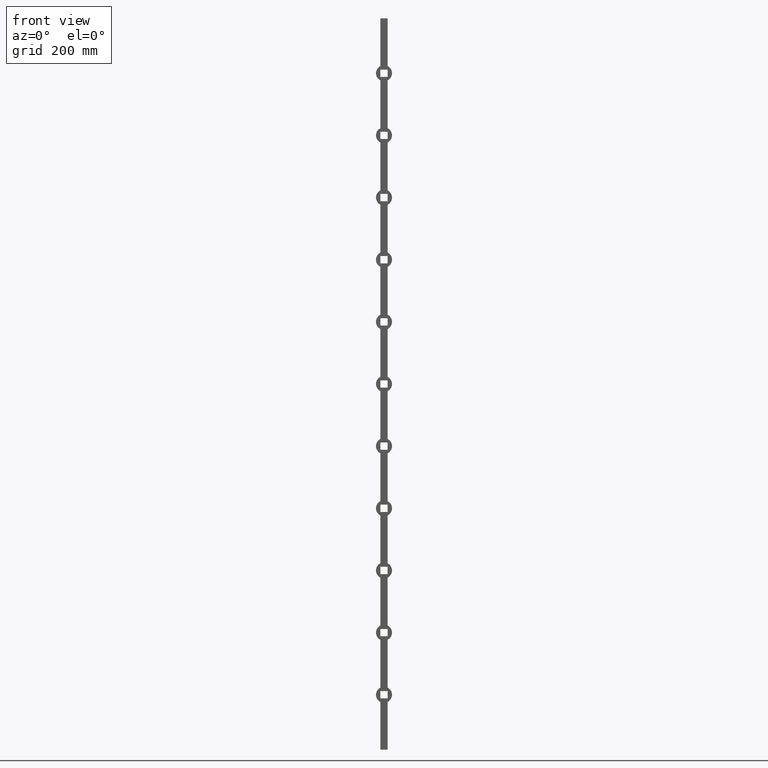
[diagram: clean part render]
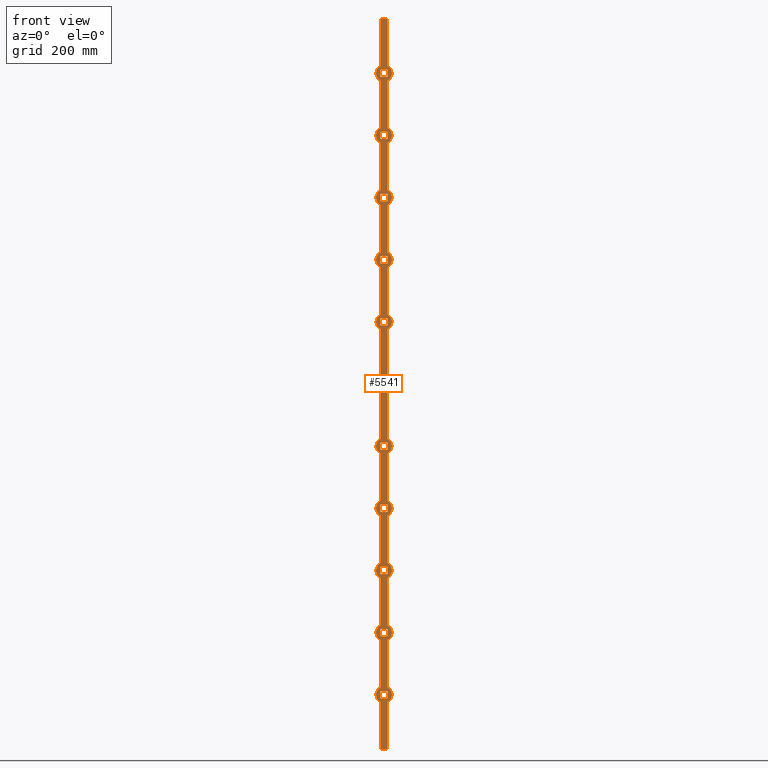
[diagram: same view with one face highlighted and labeled with its STEP entity id]
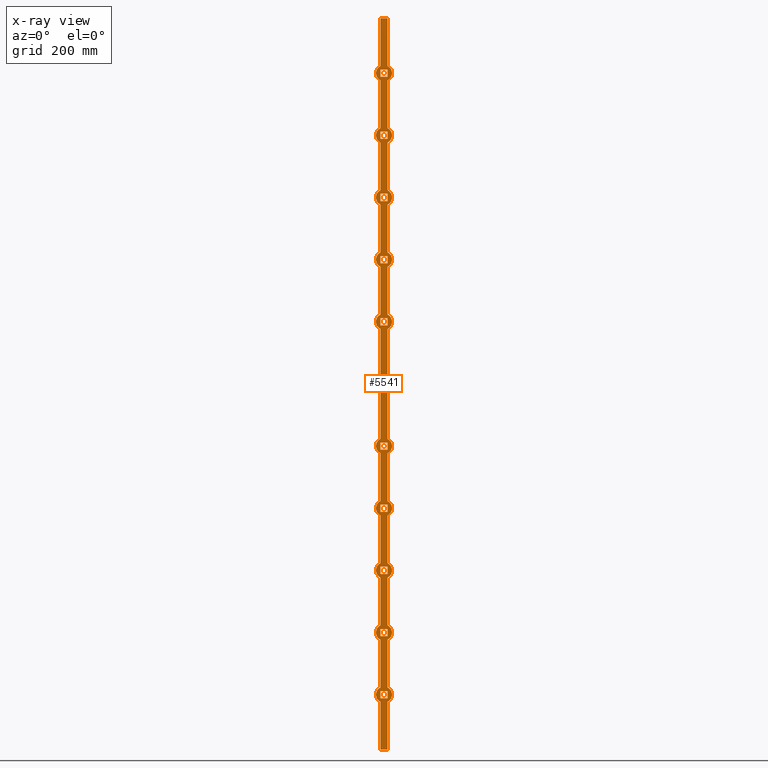
[diagram: x-ray of the same camera — body ghosted, the highlighted face saturated]
A machine part, front view. The second image highlights one B-rep face of the part: STEP entity #5541.
The next image is the same camera in x-ray: the body ghosted, the highlighted face saturated — about 0% of this face is hidden behind the body in this view.
In plain terms, the highlighted planar face has unit normal (0, 1, 0).
Its self-contained STEP definition (entity closure, byte-faithful):
#5 = VERTEX_POINT ( 'NONE', #5488 ) ;
#101 = DIRECTION ( 'NONE',  ( -8.673617379884028076E-17, -0.000000000000000000, -1.000000000000000000 ) ) ;
#110 = CARTESIAN_POINT ( 'NONE',  ( -10.00000000000000888, -10.00000000000000355, 690.0000000000000000 ) ) ;
#118 = VERTEX_POINT ( 'NONE', #7931 ) ;
#121 = LINE ( 'NONE', #10227, #9875 ) ;
#126 = VERTEX_POINT ( 'NONE', #1777 ) ;
#150 = LINE ( 'NONE', #3317, #4293 ) ;
#168 = VERTEX_POINT ( 'NONE', #7575 ) ;
#201 = CARTESIAN_POINT ( 'NONE',  ( -9.999999999999998224, -10.00000000000000000, 19.59591794226531647 ) ) ;
#216 = LINE ( 'NONE', #1017, #2536 ) ;
#217 = CARTESIAN_POINT ( 'NONE',  ( 0.000000000000000000, -10.00000000000000000, -850.0000000000002274 ) ) ;
#246 = CARTESIAN_POINT ( 'NONE',  ( -9.999999999999998224, -10.00000000000000178, 1000.000000000000000 ) ) ;
#258 = ORIENTED_EDGE ( 'NONE', *, *, #12549, .T. ) ;
#261 = AXIS2_PLACEMENT_3D ( 'NONE', #475, #5370, #6409 ) ;
#270 = DIRECTION ( 'NONE',  ( 1.000000000000000000, 0.000000000000000000, 0.000000000000000000 ) ) ;
#272 = AXIS2_PLACEMENT_3D ( 'NONE', #3239, #10012, #5161 ) ;
#280 = ORIENTED_EDGE ( 'NONE', *, *, #8237, .T. ) ;
#282 = ORIENTED_EDGE ( 'NONE', *, *, #4991, .F. ) ;
#290 = EDGE_CURVE ( 'NONE', #4674, #1785, #3842, .T. ) ;
#294 = ORIENTED_EDGE ( 'NONE', *, *, #9696, .F. ) ;
#301 = DIRECTION ( 'NONE',  ( 0.000000000000000000, 0.000000000000000000, 1.000000000000000000 ) ) ;
#313 = EDGE_CURVE ( 'NONE', #4610, #2279, #3104, .T. ) ;
#325 = LINE ( 'NONE', #9136, #6896 ) ;
#346 = VECTOR ( 'NONE', #1268, 1000.000000000000000 ) ;
#349 = CARTESIAN_POINT ( 'NONE',  ( -9.999999999999984013, -10.00000000000000000, -320.4040820577347404 ) ) ;
#366 = VERTEX_POINT ( 'NONE', #6201 ) ;
#383 = CARTESIAN_POINT ( 'NONE',  ( -10.00000000000001066, -10.00000000000000355, 499.9999999999999432 ) ) ;
#391 = VECTOR ( 'NONE', #7766, 1000.000000000000000 ) ;
#439 = CARTESIAN_POINT ( 'NONE',  ( 10.00000000000000178, -10.00000000000000355, 359.5959179422654302 ) ) ;
#464 = LINE ( 'NONE', #5797, #3704 ) ;
#475 = CARTESIAN_POINT ( 'NONE',  ( 0.000000000000000000, -10.00000000000000000, -680.0000000000000000 ) ) ;
#509 = LINE ( 'NONE', #8460, #3898 ) ;
#512 = CARTESIAN_POINT ( 'NONE',  ( 10.00000000000000711, -10.00000000000000355, 329.9999999999999432 ) ) ;
#536 = VECTOR ( 'NONE', #2397, 1000.000000000000000 ) ;
#544 = EDGE_CURVE ( 'NONE', #4027, #8877, #907, .T. ) ;
#591 = CARTESIAN_POINT ( 'NONE',  ( -10.00000000000000888, -10.00000000000000355, -670.0000000000000000 ) ) ;
#601 = DIRECTION ( 'NONE',  ( -1.000000000000000000, -0.000000000000000000, -0.000000000000000000 ) ) ;
#644 = VERTEX_POINT ( 'NONE', #5026 ) ;
#647 = CARTESIAN_POINT ( 'NONE',  ( -10.00000000000001066, -10.00000000000000355, 669.9999999999998863 ) ) ;
#664 = EDGE_CURVE ( 'NONE', #11410, #12197, #1694, .T. ) ;
#676 = EDGE_CURVE ( 'NONE', #8651, #10917, #757, .T. ) ;
#715 = VERTEX_POINT ( 'NONE', #11104 ) ;
#716 = EDGE_CURVE ( 'NONE', #9146, #3802, #9149, .T. ) ;
#720 = VECTOR ( 'NONE', #12362, 1000.000000000000000 ) ;
#737 = AXIS2_PLACEMENT_3D ( 'NONE', #6223, #11020, #9154 ) ;
#741 = CARTESIAN_POINT ( 'NONE',  ( -10.00000000000000888, -10.00000000000000355, -330.0000000000001705 ) ) ;
#757 = LINE ( 'NONE', #2255, #9583 ) ;
#786 = CARTESIAN_POINT ( 'NONE',  ( 10.00000000000000888, -10.00000000000000355, -330.0000000000001705 ) ) ;
#787 = ORIENTED_EDGE ( 'NONE', *, *, #5426, .T. ) ;
#822 = LINE ( 'NONE', #9133, #2392 ) ;
#825 = CARTESIAN_POINT ( 'NONE',  ( -9.999999999999998224, -10.00000000000000355, -359.5959179422656575 ) ) ;
#831 = DIRECTION ( 'NONE',  ( 0.000000000000000000, 1.000000000000000000, 0.000000000000000000 ) ) ;
#841 = CARTESIAN_POINT ( 'NONE',  ( -9.999999999999998224, -10.00000000000000178, 1000.000000000000000 ) ) ;
#845 = CARTESIAN_POINT ( 'NONE',  ( -10.00000000000000888, -10.00000000000000355, -840.0000000000002274 ) ) ;
#855 = CARTESIAN_POINT ( 'NONE',  ( 10.00000000000000711, -10.00000000000000355, -180.0000000000000568 ) ) ;
#879 = ORIENTED_EDGE ( 'NONE', *, *, #1851, .F. ) ;
#883 = CARTESIAN_POINT ( 'NONE',  ( -10.00000000000000888, -10.00000000000000355, -160.0000000000000284 ) ) ;
#887 = EDGE_CURVE ( 'NONE', #11260, #11503, #11861, .T. ) ;
#907 = CIRCLE ( 'NONE', #2335, 22.00000000000002132 ) ;
#912 = LINE ( 'NONE', #1453, #2027 ) ;
#920 = ORIENTED_EDGE ( 'NONE', *, *, #3046, .F. ) ;
#931 = CARTESIAN_POINT ( 'NONE',  ( -9.999999999999984013, -10.00000000000000000, -660.4040820577346267 ) ) ;
#936 = ORIENTED_EDGE ( 'NONE', *, *, #2324, .T. ) ;
#939 = DIRECTION ( 'NONE',  ( 1.000000000000000000, 0.000000000000000000, 0.000000000000000000 ) ) ;
#955 = LINE ( 'NONE', #11697, #1738 ) ;
#1002 = CARTESIAN_POINT ( 'NONE',  ( -10.00000000000001066, -10.00000000000000178, 329.9999999999999432 ) ) ;
#1017 = CARTESIAN_POINT ( 'NONE',  ( 10.00000000000000711, -10.00000000000000355, 499.9999999999999432 ) ) ;
#1018 = CARTESIAN_POINT ( 'NONE',  ( -9.999999999999984013, -10.00000000000000000, 359.5959179422654302 ) ) ;
#1042 = DIRECTION ( 'NONE',  ( 0.000000000000000000, 1.000000000000000000, 0.000000000000000000 ) ) ;
#1058 = DIRECTION ( 'NONE',  ( 1.000000000000000000, 0.000000000000000000, 0.000000000000000000 ) ) ;
#1064 = VERTEX_POINT ( 'NONE', #6754 ) ;
#1082 = CARTESIAN_POINT ( 'NONE',  ( -10.00000000000000888, -10.00000000000000355, -840.0000000000002274 ) ) ;
#1090 = CARTESIAN_POINT ( 'NONE',  ( 10.00000000000000711, -10.00000000000000355, -520.0000000000001137 ) ) ;
#1101 = VECTOR ( 'NONE', #8656, 1000.000000000000000 ) ;
#1139 = LINE ( 'NONE', #10282, #9202 ) ;
#1146 = FACE_BOUND ( 'NONE', #6575, .T. ) ;
#1151 = EDGE_CURVE ( 'NONE', #4027, #3370, #11109, .T. ) ;
#1174 = DIRECTION ( 'NONE',  ( 8.673617379884028076E-17, 0.000000000000000000, 1.000000000000000000 ) ) ;
#1183 = CIRCLE ( 'NONE', #10207, 22.00000000000002132 ) ;
#1186 = CARTESIAN_POINT ( 'NONE',  ( 10.00000000000000533, -10.00000000000000000, 150.4040820577345130 ) ) ;
#1203 = ORIENTED_EDGE ( 'NONE', *, *, #1713, .T. ) ;
#1257 = LINE ( 'NONE', #5713, #1101 ) ;
#1268 = DIRECTION ( 'NONE',  ( -1.000000000000000000, -0.000000000000000000, -0.000000000000000000 ) ) ;
#1286 = DIRECTION ( 'NONE',  ( -1.000000000000000000, -0.000000000000000000, -0.000000000000000000 ) ) ;
#1294 = LINE ( 'NONE', #647, #11326 ) ;
#1323 = DIRECTION ( 'NONE',  ( 0.000000000000000000, 1.000000000000000000, 0.000000000000000000 ) ) ;
#1336 = EDGE_CURVE ( 'NONE', #5920, #9279, #12599, .T. ) ;
#1337 = CARTESIAN_POINT ( 'NONE',  ( 10.00000000000000888, -10.00000000000000355, -500.0000000000001137 ) ) ;
#1340 = DIRECTION ( 'NONE',  ( -0.000000000000000000, -0.000000000000000000, -1.000000000000000000 ) ) ;
#1350 = LINE ( 'NONE', #855, #720 ) ;
#1351 = EDGE_CURVE ( 'NONE', #7576, #9570, #150, .T. ) ;
#1360 = CIRCLE ( 'NONE', #2660, 22.00000000000002132 ) ;
#1384 = VECTOR ( 'NONE', #11019, 1000.000000000000000 ) ;
#1386 = VECTOR ( 'NONE', #4998, 1000.000000000000000 ) ;
#1408 = CARTESIAN_POINT ( 'NONE',  ( -10.00000000000001066, -10.00000000000000355, -180.0000000000000568 ) ) ;
#1410 = EDGE_CURVE ( 'NONE', #8058, #5920, #5327, .T. ) ;
#1412 = AXIS2_PLACEMENT_3D ( 'NONE', #1882, #831, #4716 ) ;
#1431 = EDGE_LOOP ( 'NONE', ( #9948, #4682, #7808, #12561 ) ) ;
#1436 = EDGE_CURVE ( 'NONE', #6146, #7035, #8220, .T. ) ;
#1447 = ORIENTED_EDGE ( 'NONE', *, *, #3707, .F. ) ;
#1448 = LINE ( 'NONE', #11044, #2096 ) ;
#1452 = DIRECTION ( 'NONE',  ( -0.000000000000000000, -0.000000000000000000, -1.000000000000000000 ) ) ;
#1453 = CARTESIAN_POINT ( 'NONE',  ( -10.00000000000001066, -10.00000000000000355, -10.00000000000012079 ) ) ;
#1458 = LINE ( 'NONE', #3268, #9067 ) ;
#1470 = VECTOR ( 'NONE', #4723, 1000.000000000000000 ) ;
#1514 = LINE ( 'NONE', #2065, #11550 ) ;
#1515 = CARTESIAN_POINT ( 'NONE',  ( -9.999999999999998224, -10.00000000000000355, 150.4040820577345130 ) ) ;
#1523 = VERTEX_POINT ( 'NONE', #2950 ) ;
#1531 = LINE ( 'NONE', #10055, #11560 ) ;
#1552 = DIRECTION ( 'NONE',  ( -8.673617379884028076E-17, -0.000000000000000000, -1.000000000000000000 ) ) ;
#1555 = EDGE_CURVE ( 'NONE', #11877, #4475, #10193, .T. ) ;
#1562 = VERTEX_POINT ( 'NONE', #11835 ) ;
#1594 = FACE_BOUND ( 'NONE', #10344, .T. ) ;
#1634 = ORIENTED_EDGE ( 'NONE', *, *, #11200, .T. ) ;
#1657 = EDGE_CURVE ( 'NONE', #10653, #3370, #9152, .T. ) ;
#1669 = AXIS2_PLACEMENT_3D ( 'NONE', #9502, #6535, #12243 ) ;
#1684 = CARTESIAN_POINT ( 'NONE',  ( -9.999999999999998224, -10.00000000000000355, -189.5959179422654586 ) ) ;
#1694 = CIRCLE ( 'NONE', #8231, 22.00000000000002132 ) ;
#1713 = EDGE_CURVE ( 'NONE', #11723, #4989, #1531, .T. ) ;
#1736 = EDGE_CURVE ( 'NONE', #10285, #11207, #912, .T. ) ;
#1738 = VECTOR ( 'NONE', #6881, 1000.000000000000000 ) ;
#1760 = CARTESIAN_POINT ( 'NONE',  ( 0.000000000000000000, -10.00000000000000000, -170.0000000000000284 ) ) ;
#1774 = VECTOR ( 'NONE', #10578, 1000.000000000000000 ) ;
#1777 = CARTESIAN_POINT ( 'NONE',  ( -9.999999999999998224, -10.00000000000000355, 830.4040820577345130 ) ) ;
#1778 = CARTESIAN_POINT ( 'NONE',  ( 10.00000000000000888, -10.00000000000000355, 690.0000000000000000 ) ) ;
#1779 = ORIENTED_EDGE ( 'NONE', *, *, #6457, .T. ) ;
#1785 = VERTEX_POINT ( 'NONE', #5389 ) ;
#1824 = VECTOR ( 'NONE', #8163, 1000.000000000000000 ) ;
#1827 = AXIS2_PLACEMENT_3D ( 'NONE', #2723, #12396, #4613 ) ;
#1832 = VERTEX_POINT ( 'NONE', #10256 ) ;
#1835 = DIRECTION ( 'NONE',  ( -0.000000000000000000, -0.000000000000000000, -1.000000000000000000 ) ) ;
#1851 = EDGE_CURVE ( 'NONE', #6179, #4989, #7160, .T. ) ;
#1854 = DIRECTION ( 'NONE',  ( 8.673617379884028076E-17, 0.000000000000000000, 1.000000000000000000 ) ) ;
#1856 = ORIENTED_EDGE ( 'NONE', *, *, #2837, .T. ) ;
#1868 = VERTEX_POINT ( 'NONE', #439 ) ;
#1882 = CARTESIAN_POINT ( 'NONE',  ( 0.000000000000000000, -10.00000000000000000, 169.9999999999999432 ) ) ;
#1931 = LINE ( 'NONE', #2315, #9654 ) ;
#1941 = VERTEX_POINT ( 'NONE', #11331 ) ;
#1948 = ORIENTED_EDGE ( 'NONE', *, *, #6240, .T. ) ;
#1974 = CARTESIAN_POINT ( 'NONE',  ( -10.00000000000001066, -10.00000000000000355, -690.0000000000001137 ) ) ;
#1978 = CARTESIAN_POINT ( 'NONE',  ( -10.00000000000001066, -10.00000000000000355, -690.0000000000001137 ) ) ;
#2027 = VECTOR ( 'NONE', #3427, 1000.000000000000000 ) ;
#2053 = ORIENTED_EDGE ( 'NONE', *, *, #6404, .T. ) ;
#2065 = CARTESIAN_POINT ( 'NONE',  ( -10.00000000000001066, -10.00000000000000355, -520.0000000000001137 ) ) ;
#2093 = CARTESIAN_POINT ( 'NONE',  ( -10.00000000000001066, -10.00000000000000178, -350.0000000000001137 ) ) ;
#2096 = VECTOR ( 'NONE', #3172, 1000.000000000000000 ) ;
#2109 = LINE ( 'NONE', #845, #10885 ) ;
#2190 = CARTESIAN_POINT ( 'NONE',  ( 0.000000000000000000, -10.00000000000000000, 679.9999999999998863 ) ) ;
#2191 = EDGE_CURVE ( 'NONE', #10469, #9020, #4415, .T. ) ;
#2200 = ORIENTED_EDGE ( 'NONE', *, *, #2589, .T. ) ;
#2208 = DIRECTION ( 'NONE',  ( -0.000000000000000000, -0.000000000000000000, -1.000000000000000000 ) ) ;
#2222 = DIRECTION ( 'NONE',  ( 0.000000000000000000, 1.000000000000000000, 0.000000000000000000 ) ) ;
#2239 = VERTEX_POINT ( 'NONE', #6103 ) ;
#2255 = CARTESIAN_POINT ( 'NONE',  ( 10.00000000000000178, -10.00000000000000178, 1000.000000000000000 ) ) ;
#2277 = DIRECTION ( 'NONE',  ( 8.673617379884028076E-17, 0.000000000000000000, 1.000000000000000000 ) ) ;
#2279 = VERTEX_POINT ( 'NONE', #6322 ) ;
#2286 = ORIENTED_EDGE ( 'NONE', *, *, #1410, .T. ) ;
#2315 = CARTESIAN_POINT ( 'NONE',  ( -10.00000000000000888, -10.00000000000000355, -500.0000000000001137 ) ) ;
#2324 = EDGE_CURVE ( 'NONE', #366, #168, #12280, .T. ) ;
#2335 = AXIS2_PLACEMENT_3D ( 'NONE', #6777, #11653, #12608 ) ;
#2346 = CARTESIAN_POINT ( 'NONE',  ( -10.00000000000001066, -10.00000000000000355, 840.0000000000000000 ) ) ;
#2347 = VERTEX_POINT ( 'NONE', #1684 ) ;
#2352 = CARTESIAN_POINT ( 'NONE',  ( -9.999999999999998224, -10.00000000000000178, 1000.000000000000000 ) ) ;
#2353 = AXIS2_PLACEMENT_3D ( 'NONE', #3494, #11220, #11181 ) ;
#2371 = VERTEX_POINT ( 'NONE', #591 ) ;
#2379 = CARTESIAN_POINT ( 'NONE',  ( -9.999999999999998224, -10.00000000000000355, -529.5959179422656007 ) ) ;
#2384 = LINE ( 'NONE', #2483, #3736 ) ;
#2392 = VECTOR ( 'NONE', #2277, 1000.000000000000000 ) ;
#2397 = DIRECTION ( 'NONE',  ( -0.000000000000000000, -0.000000000000000000, -1.000000000000000000 ) ) ;
#2400 = VERTEX_POINT ( 'NONE', #5777 ) ;
#2407 = LINE ( 'NONE', #9221, #4364 ) ;
#2436 = VECTOR ( 'NONE', #7767, 1000.000000000000000 ) ;
#2439 = DIRECTION ( 'NONE',  ( 0.000000000000000000, 1.000000000000000000, 0.000000000000000000 ) ) ;
#2451 = EDGE_CURVE ( 'NONE', #9570, #9146, #4128, .T. ) ;
#2460 = VERTEX_POINT ( 'NONE', #931 ) ;
#2483 = CARTESIAN_POINT ( 'NONE',  ( -10.00000000000000888, -10.00000000000000355, 9.999999999999896971 ) ) ;
#2511 = LINE ( 'NONE', #8479, #7965 ) ;
#2527 = LINE ( 'NONE', #8468, #6314 ) ;
#2532 = CARTESIAN_POINT ( 'NONE',  ( 10.00000000000000178, -10.00000000000000355, -320.4040820577347404 ) ) ;
#2536 = VECTOR ( 'NONE', #3805, 1000.000000000000000 ) ;
#2558 = LINE ( 'NONE', #3207, #536 ) ;
#2583 = LINE ( 'NONE', #11658, #5282 ) ;
#2589 = EDGE_CURVE ( 'NONE', #12068, #9753, #5446, .T. ) ;
#2604 = CARTESIAN_POINT ( 'NONE',  ( 10.00000000000000178, -10.00000000000000178, 1000.000000000000000 ) ) ;
#2609 = ORIENTED_EDGE ( 'NONE', *, *, #7473, .T. ) ;
#2640 = EDGE_CURVE ( 'NONE', #1562, #11264, #1360, .T. ) ;
#2643 = CIRCLE ( 'NONE', #261, 22.00000000000002132 ) ;
#2660 = AXIS2_PLACEMENT_3D ( 'NONE', #4689, #12349, #3811 ) ;
#2662 = CARTESIAN_POINT ( 'NONE',  ( -10.00000000000001066, -10.00000000000000355, 669.9999999999998863 ) ) ;
#2666 = DIRECTION ( 'NONE',  ( -1.000000000000000000, -0.000000000000000000, -0.000000000000000000 ) ) ;
#2712 = CARTESIAN_POINT ( 'NONE',  ( -10.00000000000000888, -10.00000000000000355, 350.0000000000000000 ) ) ;
#2723 = CARTESIAN_POINT ( 'NONE',  ( 0.000000000000000000, -10.00000000000000000, -1.110223024625156540E-13 ) ) ;
#2758 = EDGE_CURVE ( 'NONE', #8678, #1064, #10611, .T. ) ;
#2779 = CARTESIAN_POINT ( 'NONE',  ( -10.00000000000001066, -10.00000000000000178, -520.0000000000000000 ) ) ;
#2782 = VERTEX_POINT ( 'NONE', #11602 ) ;
#2837 = EDGE_CURVE ( 'NONE', #4596, #10469, #3215, .T. ) ;
#2842 = DIRECTION ( 'NONE',  ( -0.000000000000000000, -0.000000000000000000, -1.000000000000000000 ) ) ;
#2844 = VECTOR ( 'NONE', #5133, 1000.000000000000000 ) ;
#2892 = EDGE_CURVE ( 'NONE', #1941, #6146, #7281, .T. ) ;
#2922 = VERTEX_POINT ( 'NONE', #8199 ) ;
#2936 = VERTEX_POINT ( 'NONE', #6258 ) ;
#2938 = VECTOR ( 'NONE', #9934, 1000.000000000000000 ) ;
#2950 = CARTESIAN_POINT ( 'NONE',  ( -10.00000000000001066, -10.00000000000000178, 840.0000000000000000 ) ) ;
#2958 = DIRECTION ( 'NONE',  ( -0.000000000000000000, -0.000000000000000000, -1.000000000000000000 ) ) ;
#2960 = DIRECTION ( 'NONE',  ( 0.000000000000000000, 1.000000000000000000, 0.000000000000000000 ) ) ;
#2963 = ORIENTED_EDGE ( 'NONE', *, *, #8171, .T. ) ;
#2980 = LINE ( 'NONE', #1978, #346 ) ;
#3026 = ORIENTED_EDGE ( 'NONE', *, *, #11312, .F. ) ;
#3046 = EDGE_CURVE ( 'NONE', #118, #5032, #121, .T. ) ;
#3053 = ORIENTED_EDGE ( 'NONE', *, *, #4721, .T. ) ;
#3062 = ORIENTED_EDGE ( 'NONE', *, *, #7162, .T. ) ;
#3082 = ORIENTED_EDGE ( 'NONE', *, *, #9843, .T. ) ;
#3104 = LINE ( 'NONE', #7164, #9294 ) ;
#3117 = ORIENTED_EDGE ( 'NONE', *, *, #313, .T. ) ;
#3166 = CARTESIAN_POINT ( 'NONE',  ( -10.00000000000001066, -10.00000000000000178, -10.00000000000023093 ) ) ;
#3172 = DIRECTION ( 'NONE',  ( 1.000000000000000000, 0.000000000000000000, 0.000000000000000000 ) ) ;
#3207 = CARTESIAN_POINT ( 'NONE',  ( 10.00000000000000178, -10.00000000000000178, 1000.000000000000000 ) ) ;
#3215 = LINE ( 'NONE', #7032, #6687 ) ;
#3227 = CARTESIAN_POINT ( 'NONE',  ( 0.000000000000000000, -10.00000000000000000, -850.0000000000002274 ) ) ;
#3239 = CARTESIAN_POINT ( 'NONE',  ( 0.000000000000000000, -10.00000000000000000, 339.9999999999999432 ) ) ;
#3268 = CARTESIAN_POINT ( 'NONE',  ( 10.00000000000000178, -10.00000000000000178, 1000.000000000000000 ) ) ;
#3282 = CARTESIAN_POINT ( 'NONE',  ( 0.000000000000000000, -10.00000000000000000, 510.0000000000000000 ) ) ;
#3284 = EDGE_CURVE ( 'NONE', #11645, #2371, #12419, .T. ) ;
#3294 = LINE ( 'NONE', #12525, #9484 ) ;
#3317 = CARTESIAN_POINT ( 'NONE',  ( 10.00000000000000178, -10.00000000000000178, 1000.000000000000000 ) ) ;
#3333 = CARTESIAN_POINT ( 'NONE',  ( -10.00000000000000888, -10.00000000000000355, 520.0000000000000000 ) ) ;
#3370 = VERTEX_POINT ( 'NONE', #7939 ) ;
#3381 = DIRECTION ( 'NONE',  ( -1.000000000000000000, -0.000000000000000000, -0.000000000000000000 ) ) ;
#3391 = EDGE_CURVE ( 'NONE', #10631, #8651, #11089, .T. ) ;
#3397 = DIRECTION ( 'NONE',  ( 8.673617379884028076E-17, 0.000000000000000000, 1.000000000000000000 ) ) ;
#3419 = DIRECTION ( 'NONE',  ( 1.000000000000000000, 0.000000000000000000, 0.000000000000000000 ) ) ;
#3427 = DIRECTION ( 'NONE',  ( 8.673617379884028076E-17, 0.000000000000000000, 1.000000000000000000 ) ) ;
#3465 = VECTOR ( 'NONE', #5130, 1000.000000000000000 ) ;
#3478 = CARTESIAN_POINT ( 'NONE',  ( -10.00000000000001066, -10.00000000000000178, 159.9999999999999147 ) ) ;
#3491 = EDGE_LOOP ( 'NONE', ( #10901, #1856, #8787, #10072 ) ) ;
#3494 = CARTESIAN_POINT ( 'NONE',  ( 0.000000000000000000, -10.00000000000000000, 169.9999999999999432 ) ) ;
#3536 = LINE ( 'NONE', #3764, #9300 ) ;
#3539 = CARTESIAN_POINT ( 'NONE',  ( 10.00000000000000178, -10.00000000000000355, -150.4040820577346267 ) ) ;
#3597 = CARTESIAN_POINT ( 'NONE',  ( 10.00000000000000178, -10.00000000000000355, 869.5959179422653733 ) ) ;
#3602 = LINE ( 'NONE', #5946, #9815 ) ;
#3630 = EDGE_CURVE ( 'NONE', #12328, #8058, #1350, .T. ) ;
#3659 = VERTEX_POINT ( 'NONE', #1082 ) ;
#3670 = CARTESIAN_POINT ( 'NONE',  ( -9.999999999999998224, -10.00000000000000355, -699.5959179422654870 ) ) ;
#3674 = CARTESIAN_POINT ( 'NONE',  ( 0.000000000000000000, -10.00000000000000000, -680.0000000000000000 ) ) ;
#3704 = VECTOR ( 'NONE', #4744, 1000.000000000000000 ) ;
#3707 = EDGE_CURVE ( 'NONE', #4670, #644, #2583, .T. ) ;
#3716 = VECTOR ( 'NONE', #11599, 1000.000000000000000 ) ;
#3725 = EDGE_LOOP ( 'NONE', ( #3053, #936, #5769, #8346 ) ) ;
#3726 = DIRECTION ( 'NONE',  ( 0.000000000000000000, 0.000000000000000000, 1.000000000000000000 ) ) ;
#3736 = VECTOR ( 'NONE', #8489, 1000.000000000000000 ) ;
#3748 = FACE_BOUND ( 'NONE', #3828, .T. ) ;
#3764 = CARTESIAN_POINT ( 'NONE',  ( -9.999999999999998224, -10.00000000000000178, 1000.000000000000000 ) ) ;
#3771 = LINE ( 'NONE', #11972, #8013 ) ;
#3779 = CARTESIAN_POINT ( 'NONE',  ( 10.00000000000000178, -10.00000000000000000, -19.59591794226553674 ) ) ;
#3791 = AXIS2_PLACEMENT_3D ( 'NONE', #10096, #5164, #301 ) ;
#3802 = VERTEX_POINT ( 'NONE', #3539 ) ;
#3805 = DIRECTION ( 'NONE',  ( -8.673617379884028076E-17, -0.000000000000000000, -1.000000000000000000 ) ) ;
#3811 = DIRECTION ( 'NONE',  ( 0.000000000000000000, 0.000000000000000000, 1.000000000000000000 ) ) ;
#3828 = EDGE_LOOP ( 'NONE', ( #7595, #11399, #2286, #5766 ) ) ;
#3832 = ORIENTED_EDGE ( 'NONE', *, *, #8596, .T. ) ;
#3842 = LINE ( 'NONE', #383, #2938 ) ;
#3877 = VERTEX_POINT ( 'NONE', #8668 ) ;
#3890 = AXIS2_PLACEMENT_3D ( 'NONE', #8009, #11782, #8046 ) ;
#3898 = VECTOR ( 'NONE', #2666, 1000.000000000000000 ) ;
#3905 = DIRECTION ( 'NONE',  ( 0.000000000000000000, 0.000000000000000000, 1.000000000000000000 ) ) ;
#3906 = CARTESIAN_POINT ( 'NONE',  ( -10.00000000000000888, -10.00000000000000355, -500.0000000000001137 ) ) ;
#4002 = EDGE_CURVE ( 'NONE', #9828, #4287, #8179, .T. ) ;
#4027 = VERTEX_POINT ( 'NONE', #825 ) ;
#4057 = FACE_BOUND ( 'NONE', #3491, .T. ) ;
#4091 = DIRECTION ( 'NONE',  ( 0.000000000000000000, 0.000000000000000000, 1.000000000000000000 ) ) ;
#4094 = EDGE_CURVE ( 'NONE', #12121, #11877, #1514, .T. ) ;
#4098 = CARTESIAN_POINT ( 'NONE',  ( -9.999999999999998224, -10.00000000000000178, 1000.000000000000000 ) ) ;
#4107 = CARTESIAN_POINT ( 'NONE',  ( -9.999999999999998224, -10.00000000000000355, 320.4040820577345130 ) ) ;
#4112 = ORIENTED_EDGE ( 'NONE', *, *, #9807, .T. ) ;
#4128 = CIRCLE ( 'NONE', #1827, 22.00000000000000355 ) ;
#4155 = VECTOR ( 'NONE', #8593, 1000.000000000000000 ) ;
#4181 = VECTOR ( 'NONE', #3397, 1000.000000000000000 ) ;
#4191 = CIRCLE ( 'NONE', #272, 22.00000000000002132 ) ;
#4207 = EDGE_CURVE ( 'NONE', #2782, #5621, #2558, .T. ) ;
#4225 = LINE ( 'NONE', #11127, #3465 ) ;
#4234 = CARTESIAN_POINT ( 'NONE',  ( 0.000000000000000000, -10.00000000000000000, 850.0000000000000000 ) ) ;
#4245 = EDGE_CURVE ( 'NONE', #5, #9835, #4225, .T. ) ;
#4275 = DIRECTION ( 'NONE',  ( 0.000000000000000000, 1.000000000000000000, 0.000000000000000000 ) ) ;
#4287 = VERTEX_POINT ( 'NONE', #12155 ) ;
#4293 = VECTOR ( 'NONE', #1452, 1000.000000000000000 ) ;
#4364 = VECTOR ( 'NONE', #3419, 1000.000000000000000 ) ;
#4371 = CARTESIAN_POINT ( 'NONE',  ( 10.00000000000000711, -10.00000000000000355, -690.0000000000001137 ) ) ;
#4391 = DIRECTION ( 'NONE',  ( 8.673617379884028076E-17, 0.000000000000000000, 1.000000000000000000 ) ) ;
#4415 = LINE ( 'NONE', #11066, #10796 ) ;
#4467 = CARTESIAN_POINT ( 'NONE',  ( -10.00000000000001066, -10.00000000000000355, 840.0000000000000000 ) ) ;
#4475 = VERTEX_POINT ( 'NONE', #3906 ) ;
#4510 = DIRECTION ( 'NONE',  ( 0.000000000000000000, 1.000000000000000000, 0.000000000000000000 ) ) ;
#4522 = CIRCLE ( 'NONE', #3890, 22.00000000000002132 ) ;
#4579 = PLANE ( 'NONE',  #1669 ) ;
#4596 = VERTEX_POINT ( 'NONE', #8045 ) ;
#4610 = VERTEX_POINT ( 'NONE', #2093 ) ;
#4611 = CIRCLE ( 'NONE', #1412, 21.99999999999999289 ) ;
#4613 = DIRECTION ( 'NONE',  ( 0.000000000000000000, 0.000000000000000000, 1.000000000000000000 ) ) ;
#4650 = LINE ( 'NONE', #10064, #2844 ) ;
#4670 = VERTEX_POINT ( 'NONE', #4733 ) ;
#4673 = VECTOR ( 'NONE', #6543, 1000.000000000000000 ) ;
#4674 = VERTEX_POINT ( 'NONE', #11524 ) ;
#4675 = LINE ( 'NONE', #11434, #1470 ) ;
#4682 = ORIENTED_EDGE ( 'NONE', *, *, #5503, .T. ) ;
#4689 = CARTESIAN_POINT ( 'NONE',  ( 0.000000000000000000, -10.00000000000000000, 510.0000000000000000 ) ) ;
#4705 = VECTOR ( 'NONE', #10794, 1000.000000000000000 ) ;
#4712 = ORIENTED_EDGE ( 'NONE', *, *, #7200, .F. ) ;
#4716 = DIRECTION ( 'NONE',  ( 0.000000000000000000, 0.000000000000000000, 1.000000000000000000 ) ) ;
#4721 = EDGE_CURVE ( 'NONE', #8247, #366, #9826, .T. ) ;
#4723 = DIRECTION ( 'NONE',  ( -0.000000000000000000, -0.000000000000000000, -1.000000000000000000 ) ) ;
#4733 = CARTESIAN_POINT ( 'NONE',  ( 9.999999999999984013, -10.00000000000000000, -699.5959179422654870 ) ) ;
#4744 = DIRECTION ( 'NONE',  ( 1.000000000000000000, 0.000000000000000000, 0.000000000000000000 ) ) ;
#4745 = ORIENTED_EDGE ( 'NONE', *, *, #676, .F. ) ;
#4746 = EDGE_CURVE ( 'NONE', #3659, #8928, #2109, .T. ) ;
#4773 = CARTESIAN_POINT ( 'NONE',  ( 10.00000000000000711, -10.00000000000000355, -350.0000000000002274 ) ) ;
#4816 = ORIENTED_EDGE ( 'NONE', *, *, #290, .T. ) ;
#4867 = ORIENTED_EDGE ( 'NONE', *, *, #7890, .T. ) ;
#4927 = CARTESIAN_POINT ( 'NONE',  ( -10.00000000000001066, -10.00000000000000355, -520.0000000000001137 ) ) ;
#4932 = ORIENTED_EDGE ( 'NONE', *, *, #11040, .T. ) ;
#4943 = AXIS2_PLACEMENT_3D ( 'NONE', #1760, #11554, #3726 ) ;
#4979 = EDGE_CURVE ( 'NONE', #6179, #1832, #8759, .T. ) ;
#4989 = VERTEX_POINT ( 'NONE', #201 ) ;
#4991 = EDGE_CURVE ( 'NONE', #2936, #2239, #1458, .T. ) ;
#4996 = VERTEX_POINT ( 'NONE', #4107 ) ;
#4998 = DIRECTION ( 'NONE',  ( 8.673617379884028076E-17, 0.000000000000000000, 1.000000000000000000 ) ) ;
#5020 = DIRECTION ( 'NONE',  ( -8.673617379884028076E-17, -0.000000000000000000, -1.000000000000000000 ) ) ;
#5026 = CARTESIAN_POINT ( 'NONE',  ( 10.00000000000000178, -10.00000000000000355, -830.4040820577347404 ) ) ;
#5032 = VERTEX_POINT ( 'NONE', #5226 ) ;
#5055 = DIRECTION ( 'NONE',  ( -0.000000000000000000, -0.000000000000000000, -1.000000000000000000 ) ) ;
#5058 = EDGE_CURVE ( 'NONE', #5032, #7576, #9217, .T. ) ;
#5072 = ORIENTED_EDGE ( 'NONE', *, *, #1736, .T. ) ;
#5095 = VERTEX_POINT ( 'NONE', #2532 ) ;
#5105 = DIRECTION ( 'NONE',  ( 1.000000000000000000, 0.000000000000000000, 0.000000000000000000 ) ) ;
#5121 = VECTOR ( 'NONE', #5105, 1000.000000000000000 ) ;
#5130 = DIRECTION ( 'NONE',  ( -1.000000000000000000, -0.000000000000000000, -0.000000000000000000 ) ) ;
#5133 = DIRECTION ( 'NONE',  ( -8.673617379884028076E-17, -0.000000000000000000, -1.000000000000000000 ) ) ;
#5143 = CARTESIAN_POINT ( 'NONE',  ( -10.00000000000001066, -10.00000000000000178, 669.9999999999998863 ) ) ;
#5157 = CARTESIAN_POINT ( 'NONE',  ( -9.999999999999998224, -10.00000000000000178, 1000.000000000000000 ) ) ;
#5161 = DIRECTION ( 'NONE',  ( 0.000000000000000000, 0.000000000000000000, 1.000000000000000000 ) ) ;
#5164 = DIRECTION ( 'NONE',  ( 0.000000000000000000, 1.000000000000000000, 0.000000000000000000 ) ) ;
#5219 = DIRECTION ( 'NONE',  ( 0.000000000000000000, 0.000000000000000000, 1.000000000000000000 ) ) ;
#5226 = CARTESIAN_POINT ( 'NONE',  ( 10.00000000000000178, -10.00000000000000355, 189.5959179422653449 ) ) ;
#5282 = VECTOR ( 'NONE', #6879, 1000.000000000000000 ) ;
#5309 = EDGE_CURVE ( 'NONE', #2347, #1832, #11183, .T. ) ;
#5327 = LINE ( 'NONE', #1408, #12152 ) ;
#5338 = DIRECTION ( 'NONE',  ( 0.000000000000000000, 1.000000000000000000, 0.000000000000000000 ) ) ;
#5369 = ORIENTED_EDGE ( 'NONE', *, *, #6618, .T. ) ;
#5370 = DIRECTION ( 'NONE',  ( 0.000000000000000000, 1.000000000000000000, 0.000000000000000000 ) ) ;
#5389 = CARTESIAN_POINT ( 'NONE',  ( -10.00000000000001066, -10.00000000000000178, 500.0000000000000000 ) ) ;
#5426 = EDGE_CURVE ( 'NONE', #8928, #5, #3602, .T. ) ;
#5446 = LINE ( 'NONE', #841, #10621 ) ;
#5488 = CARTESIAN_POINT ( 'NONE',  ( 10.00000000000000711, -10.00000000000000355, -860.0000000000002274 ) ) ;
#5503 = EDGE_CURVE ( 'NONE', #6042, #12121, #4650, .T. ) ;
#5510 = EDGE_CURVE ( 'NONE', #9835, #3659, #822, .T. ) ;
#5517 = LINE ( 'NONE', #4098, #9334 ) ;
#5524 = EDGE_CURVE ( 'NONE', #8895, #2922, #1448, .T. ) ;
#5529 = CARTESIAN_POINT ( 'NONE',  ( -9.999999999999984013, -10.00000000000000000, 699.5959179422653733 ) ) ;
#5541 = ADVANCED_FACE ( 'NONE', ( #1146, #6634, #12079, #4057, #11480, #3748, #10876, #5694, #12521, #1594, #7825, #6311 ), #4579, .F. ) ;
#5550 = DIRECTION ( 'NONE',  ( 0.000000000000000000, 0.000000000000000000, 1.000000000000000000 ) ) ;
#5572 = ORIENTED_EDGE ( 'NONE', *, *, #11920, .F. ) ;
#5600 = DIRECTION ( 'NONE',  ( 8.673617379884028076E-17, 0.000000000000000000, 1.000000000000000000 ) ) ;
#5612 = CARTESIAN_POINT ( 'NONE',  ( -10.00000000000000888, -10.00000000000000355, 350.0000000000000000 ) ) ;
#5621 = VERTEX_POINT ( 'NONE', #11409 ) ;
#5683 = VECTOR ( 'NONE', #10030, 1000.000000000000000 ) ;
#5694 = FACE_BOUND ( 'NONE', #1431, .T. ) ;
#5713 = CARTESIAN_POINT ( 'NONE',  ( 10.00000000000000711, -10.00000000000000355, -10.00000000000012079 ) ) ;
#5764 = CARTESIAN_POINT ( 'NONE',  ( 10.00000000000000711, -10.00000000000000355, -690.0000000000001137 ) ) ;
#5766 = ORIENTED_EDGE ( 'NONE', *, *, #1336, .T. ) ;
#5769 = ORIENTED_EDGE ( 'NONE', *, *, #8736, .T. ) ;
#5777 = CARTESIAN_POINT ( 'NONE',  ( -9.999999999999998224, -10.00000000000000355, 660.4040820577345130 ) ) ;
#5782 = CARTESIAN_POINT ( 'NONE',  ( 10.00000000000000711, -10.00000000000000355, -180.0000000000000568 ) ) ;
#5797 = CARTESIAN_POINT ( 'NONE',  ( -10.00000000000000888, -10.00000000000000355, -670.0000000000000000 ) ) ;
#5820 = ORIENTED_EDGE ( 'NONE', *, *, #5524, .T. ) ;
#5850 = VECTOR ( 'NONE', #8486, 1000.000000000000000 ) ;
#5880 = CARTESIAN_POINT ( 'NONE',  ( -10.00000000000000888, -10.00000000000000355, -160.0000000000000284 ) ) ;
#5920 = VERTEX_POINT ( 'NONE', #8875 ) ;
#5945 = CARTESIAN_POINT ( 'NONE',  ( -9.999999999999998224, -10.00000000000000178, 1000.000000000000000 ) ) ;
#5946 = CARTESIAN_POINT ( 'NONE',  ( 10.00000000000000711, -10.00000000000000355, -860.0000000000002274 ) ) ;
#5948 = EDGE_LOOP ( 'NONE', ( #3082, #280, #9312, #10664 ) ) ;
#5954 = EDGE_CURVE ( 'NONE', #12068, #7294, #9803, .T. ) ;
#5976 = CARTESIAN_POINT ( 'NONE',  ( -9.999999999999984013, -10.00000000000000000, 869.5959179422653733 ) ) ;
#5984 = VECTOR ( 'NONE', #10974, 1000.000000000000000 ) ;
#5994 = ORIENTED_EDGE ( 'NONE', *, *, #10325, .F. ) ;
#5995 = AXIS2_PLACEMENT_3D ( 'NONE', #6807, #2960, #10475 ) ;
#6001 = ORIENTED_EDGE ( 'NONE', *, *, #2640, .F. ) ;
#6010 = VECTOR ( 'NONE', #1340, 1000.000000000000000 ) ;
#6040 = EDGE_CURVE ( 'NONE', #4996, #9753, #4191, .T. ) ;
#6042 = VERTEX_POINT ( 'NONE', #1337 ) ;
#6066 = CARTESIAN_POINT ( 'NONE',  ( 10.00000000000000711, -10.00000000000000355, 840.0000000000000000 ) ) ;
#6103 = CARTESIAN_POINT ( 'NONE',  ( 10.00000000000000178, -10.00000000000000355, -490.4040820577346835 ) ) ;
#6105 = VERTEX_POINT ( 'NONE', #8813 ) ;
#6122 = DIRECTION ( 'NONE',  ( 1.000000000000000000, 0.000000000000000000, 0.000000000000000000 ) ) ;
#6135 = CARTESIAN_POINT ( 'NONE',  ( -10.00000000000000888, -10.00000000000000355, 860.0000000000000000 ) ) ;
#6146 = VERTEX_POINT ( 'NONE', #6989 ) ;
#6177 = CARTESIAN_POINT ( 'NONE',  ( -10.00000000000001066, -10.00000000000000178, -860.0000000000003411 ) ) ;
#6179 = VERTEX_POINT ( 'NONE', #8498 ) ;
#6189 = EDGE_CURVE ( 'NONE', #8619, #2460, #11015, .T. ) ;
#6190 = CARTESIAN_POINT ( 'NONE',  ( -10.00000000000001066, -10.00000000000000178, -690.0000000000000000 ) ) ;
#6201 = CARTESIAN_POINT ( 'NONE',  ( 10.00000000000000888, -10.00000000000000355, 350.0000000000000000 ) ) ;
#6202 = VERTEX_POINT ( 'NONE', #10265 ) ;
#6223 = CARTESIAN_POINT ( 'NONE',  ( 0.000000000000000000, -10.00000000000000000, 679.9999999999998863 ) ) ;
#6233 = ORIENTED_EDGE ( 'NONE', *, *, #6724, .F. ) ;
#6240 = EDGE_CURVE ( 'NONE', #8619, #12197, #10694, .T. ) ;
#6258 = CARTESIAN_POINT ( 'NONE',  ( 9.999999999999984013, -10.00000000000000000, -359.5959179422656575 ) ) ;
#6266 = ORIENTED_EDGE ( 'NONE', *, *, #544, .F. ) ;
#6278 = ORIENTED_EDGE ( 'NONE', *, *, #5510, .T. ) ;
#6293 = DIRECTION ( 'NONE',  ( 0.000000000000000000, 0.000000000000000000, 1.000000000000000000 ) ) ;
#6311 = FACE_OUTER_BOUND ( 'NONE', #10485, .T. ) ;
#6314 = VECTOR ( 'NONE', #1854, 1000.000000000000000 ) ;
#6316 = DIRECTION ( 'NONE',  ( -0.000000000000000000, -0.000000000000000000, -1.000000000000000000 ) ) ;
#6322 = CARTESIAN_POINT ( 'NONE',  ( -10.00000000000000888, -10.00000000000000355, -330.0000000000001705 ) ) ;
#6331 = ORIENTED_EDGE ( 'NONE', *, *, #4979, .T. ) ;
#6349 = ORIENTED_EDGE ( 'NONE', *, *, #3391, .F. ) ;
#6358 = ORIENTED_EDGE ( 'NONE', *, *, #5954, .F. ) ;
#6391 = CARTESIAN_POINT ( 'NONE',  ( 10.00000000000000533, -10.00000000000000000, -189.5959179422654586 ) ) ;
#6404 = EDGE_CURVE ( 'NONE', #11410, #10961, #5517, .T. ) ;
#6409 = DIRECTION ( 'NONE',  ( 0.000000000000000000, 0.000000000000000000, 1.000000000000000000 ) ) ;
#6457 = EDGE_CURVE ( 'NONE', #8989, #11645, #2980, .T. ) ;
#6523 = VECTOR ( 'NONE', #270, 1000.000000000000000 ) ;
#6525 = CARTESIAN_POINT ( 'NONE',  ( 10.00000000000000711, -10.00000000000000355, -10.00000000000012079 ) ) ;
#6535 = DIRECTION ( 'NONE',  ( 0.000000000000000000, 1.000000000000000000, 0.000000000000000000 ) ) ;
#6543 = DIRECTION ( 'NONE',  ( 1.000000000000000000, 0.000000000000000000, 0.000000000000000000 ) ) ;
#6550 = ORIENTED_EDGE ( 'NONE', *, *, #4746, .T. ) ;
#6575 = EDGE_LOOP ( 'NONE', ( #12550, #10973, #12046, #10244 ) ) ;
#6577 = AXIS2_PLACEMENT_3D ( 'NONE', #7257, #2439, #5219 ) ;
#6618 = EDGE_CURVE ( 'NONE', #10389, #10285, #2511, .T. ) ;
#6634 = FACE_BOUND ( 'NONE', #7727, .T. ) ;
#6640 = AXIS2_PLACEMENT_3D ( 'NONE', #4234, #1323, #11018 ) ;
#6687 = VECTOR ( 'NONE', #5020, 1000.000000000000000 ) ;
#6705 = VERTEX_POINT ( 'NONE', #6066 ) ;
#6708 = VERTEX_POINT ( 'NONE', #5976 ) ;
#6724 = EDGE_CURVE ( 'NONE', #644, #2782, #9629, .T. ) ;
#6751 = VECTOR ( 'NONE', #8825, 1000.000000000000000 ) ;
#6754 = CARTESIAN_POINT ( 'NONE',  ( 10.00000000000000711, -10.00000000000000355, -350.0000000000002274 ) ) ;
#6763 = DIRECTION ( 'NONE',  ( -8.673617379884028076E-17, -0.000000000000000000, -1.000000000000000000 ) ) ;
#6764 = LINE ( 'NONE', #12053, #5683 ) ;
#6765 = EDGE_CURVE ( 'NONE', #10653, #2460, #8260, .T. ) ;
#6777 = CARTESIAN_POINT ( 'NONE',  ( 0.000000000000000000, -10.00000000000000000, -340.0000000000001705 ) ) ;
#6779 = EDGE_CURVE ( 'NONE', #126, #9135, #955, .T. ) ;
#6804 = CARTESIAN_POINT ( 'NONE',  ( 10.00000000000000178, -10.00000000000000178, 1000.000000000000000 ) ) ;
#6807 = CARTESIAN_POINT ( 'NONE',  ( 0.000000000000000000, -10.00000000000000000, -170.0000000000000284 ) ) ;
#6812 = LINE ( 'NONE', #10644, #391 ) ;
#6856 = EDGE_CURVE ( 'NONE', #1523, #715, #9323, .T. ) ;
#6862 = VERTEX_POINT ( 'NONE', #10940 ) ;
#6875 = DIRECTION ( 'NONE',  ( 0.000000000000000000, 1.000000000000000000, 0.000000000000000000 ) ) ;
#6879 = DIRECTION ( 'NONE',  ( -0.000000000000000000, -0.000000000000000000, -1.000000000000000000 ) ) ;
#6881 = DIRECTION ( 'NONE',  ( -0.000000000000000000, -0.000000000000000000, -1.000000000000000000 ) ) ;
#6896 = VECTOR ( 'NONE', #11966, 1000.000000000000000 ) ;
#6975 = VERTEX_POINT ( 'NONE', #6391 ) ;
#6989 = CARTESIAN_POINT ( 'NONE',  ( 10.00000000000000178, -10.00000000000000355, 699.5959179422653733 ) ) ;
#7015 = ORIENTED_EDGE ( 'NONE', *, *, #1657, .F. ) ;
#7027 = CARTESIAN_POINT ( 'NONE',  ( 9.999999999999984013, -10.00000000000000000, 490.4040820577345698 ) ) ;
#7032 = CARTESIAN_POINT ( 'NONE',  ( 10.00000000000000711, -10.00000000000000355, 159.9999999999999147 ) ) ;
#7035 = VERTEX_POINT ( 'NONE', #10364 ) ;
#7118 = EDGE_CURVE ( 'NONE', #9279, #12328, #10087, .T. ) ;
#7160 = CIRCLE ( 'NONE', #11827, 22.00000000000000355 ) ;
#7162 = EDGE_CURVE ( 'NONE', #10631, #6708, #7193, .T. ) ;
#7164 = CARTESIAN_POINT ( 'NONE',  ( -10.00000000000001066, -10.00000000000000355, -350.0000000000002274 ) ) ;
#7193 = LINE ( 'NONE', #9960, #5984 ) ;
#7200 = EDGE_CURVE ( 'NONE', #10917, #1941, #7333, .T. ) ;
#7217 = LINE ( 'NONE', #110, #9643 ) ;
#7226 = CARTESIAN_POINT ( 'NONE',  ( -9.999999999999984013, -10.00000000000000000, 529.5959179422654870 ) ) ;
#7229 = CARTESIAN_POINT ( 'NONE',  ( 10.00000000000000178, -10.00000000000000178, 1000.000000000000000 ) ) ;
#7232 = ORIENTED_EDGE ( 'NONE', *, *, #2892, .F. ) ;
#7257 = CARTESIAN_POINT ( 'NONE',  ( 0.000000000000000000, -10.00000000000000000, -340.0000000000001705 ) ) ;
#7261 = DIRECTION ( 'NONE',  ( -0.000000000000000000, -0.000000000000000000, -1.000000000000000000 ) ) ;
#7281 = LINE ( 'NONE', #11055, #1824 ) ;
#7286 = AXIS2_PLACEMENT_3D ( 'NONE', #2190, #1042, #8966 ) ;
#7294 = VERTEX_POINT ( 'NONE', #7226 ) ;
#7333 = CIRCLE ( 'NONE', #6640, 22.00000000000002132 ) ;
#7407 = CARTESIAN_POINT ( 'NONE',  ( 10.00000000000000711, -10.00000000000000355, 159.9999999999999147 ) ) ;
#7415 = EDGE_CURVE ( 'NONE', #11723, #8893, #4611, .T. ) ;
#7442 = VECTOR ( 'NONE', #4391, 1000.000000000000000 ) ;
#7473 = EDGE_CURVE ( 'NONE', #11443, #8989, #12335, .T. ) ;
#7514 = VECTOR ( 'NONE', #939, 1000.000000000000000 ) ;
#7517 = CARTESIAN_POINT ( 'NONE',  ( 10.00000000000000711, -10.00000000000000355, 840.0000000000000000 ) ) ;
#7575 = CARTESIAN_POINT ( 'NONE',  ( 10.00000000000000711, -10.00000000000000355, 329.9999999999999432 ) ) ;
#7576 = VERTEX_POINT ( 'NONE', #1186 ) ;
#7595 = ORIENTED_EDGE ( 'NONE', *, *, #7118, .T. ) ;
#7620 = LINE ( 'NONE', #7517, #4155 ) ;
#7621 = ORIENTED_EDGE ( 'NONE', *, *, #11498, .T. ) ;
#7634 = CARTESIAN_POINT ( 'NONE',  ( -9.999999999999998224, -10.00000000000000178, 1000.000000000000000 ) ) ;
#7646 = DIRECTION ( 'NONE',  ( -0.000000000000000000, -0.000000000000000000, -1.000000000000000000 ) ) ;
#7653 = EDGE_CURVE ( 'NONE', #12089, #8247, #325, .T. ) ;
#7727 = EDGE_LOOP ( 'NONE', ( #5820, #1634, #4816, #11582 ) ) ;
#7733 = EDGE_CURVE ( 'NONE', #4287, #4670, #2643, .T. ) ;
#7766 = DIRECTION ( 'NONE',  ( -1.000000000000000000, -0.000000000000000000, -0.000000000000000000 ) ) ;
#7767 = DIRECTION ( 'NONE',  ( 8.673617379884028076E-17, 0.000000000000000000, 1.000000000000000000 ) ) ;
#7786 = VERTEX_POINT ( 'NONE', #1778 ) ;
#7808 = ORIENTED_EDGE ( 'NONE', *, *, #4094, .T. ) ;
#7825 = FACE_BOUND ( 'NONE', #5948, .T. ) ;
#7870 = CARTESIAN_POINT ( 'NONE',  ( -9.999999999999998224, -10.00000000000000178, -1000.000000000000000 ) ) ;
#7890 = EDGE_CURVE ( 'NONE', #2371, #11443, #464, .T. ) ;
#7900 = EDGE_CURVE ( 'NONE', #6202, #10389, #1257, .T. ) ;
#7931 = CARTESIAN_POINT ( 'NONE',  ( 9.999999999999984013, -10.00000000000000000, 320.4040820577345130 ) ) ;
#7939 = CARTESIAN_POINT ( 'NONE',  ( -9.999999999999984013, -10.00000000000000000, -490.4040820577346835 ) ) ;
#7951 = CARTESIAN_POINT ( 'NONE',  ( -10.00000000000000888, -10.00000000000000355, 9.999999999999896971 ) ) ;
#7965 = VECTOR ( 'NONE', #9408, 1000.000000000000000 ) ;
#7970 = DIRECTION ( 'NONE',  ( 0.000000000000000000, 0.000000000000000000, 1.000000000000000000 ) ) ;
#8009 = CARTESIAN_POINT ( 'NONE',  ( 0.000000000000000000, -10.00000000000000000, 339.9999999999999432 ) ) ;
#8013 = VECTOR ( 'NONE', #10924, 1000.000000000000000 ) ;
#8045 = CARTESIAN_POINT ( 'NONE',  ( 10.00000000000000888, -10.00000000000000355, 179.9999999999999432 ) ) ;
#8046 = DIRECTION ( 'NONE',  ( 0.000000000000000000, 0.000000000000000000, 1.000000000000000000 ) ) ;
#8058 = VERTEX_POINT ( 'NONE', #5782 ) ;
#8098 = DIRECTION ( 'NONE',  ( 0.000000000000000000, 0.000000000000000000, 1.000000000000000000 ) ) ;
#8128 = DIRECTION ( 'NONE',  ( -0.000000000000000000, -0.000000000000000000, -1.000000000000000000 ) ) ;
#8142 = ORIENTED_EDGE ( 'NONE', *, *, #4002, .F. ) ;
#8163 = DIRECTION ( 'NONE',  ( -0.000000000000000000, -0.000000000000000000, -1.000000000000000000 ) ) ;
#8171 = EDGE_CURVE ( 'NONE', #2400, #7294, #3536, .T. ) ;
#8179 = LINE ( 'NONE', #6804, #10015 ) ;
#8199 = CARTESIAN_POINT ( 'NONE',  ( 10.00000000000000888, -10.00000000000000355, 520.0000000000000000 ) ) ;
#8220 = CIRCLE ( 'NONE', #737, 22.00000000000002132 ) ;
#8231 = AXIS2_PLACEMENT_3D ( 'NONE', #3227, #4275, #9153 ) ;
#8237 = EDGE_CURVE ( 'NONE', #6105, #6705, #7620, .T. ) ;
#8247 = VERTEX_POINT ( 'NONE', #2712 ) ;
#8257 = CARTESIAN_POINT ( 'NONE',  ( 10.00000000000000888, -10.00000000000000355, -160.0000000000000284 ) ) ;
#8260 = LINE ( 'NONE', #11829, #6751 ) ;
#8269 = CIRCLE ( 'NONE', #11923, 22.00000000000002132 ) ;
#8270 = CIRCLE ( 'NONE', #6577, 22.00000000000002132 ) ;
#8335 = AXIS2_PLACEMENT_3D ( 'NONE', #3674, #4510, #5550 ) ;
#8346 = ORIENTED_EDGE ( 'NONE', *, *, #7653, .T. ) ;
#8460 = CARTESIAN_POINT ( 'NONE',  ( -10.00000000000001066, -10.00000000000000355, -350.0000000000002274 ) ) ;
#8463 = EDGE_CURVE ( 'NONE', #6705, #1523, #12551, .T. ) ;
#8468 = CARTESIAN_POINT ( 'NONE',  ( -10.00000000000001066, -10.00000000000000355, 159.9999999999999147 ) ) ;
#8479 = CARTESIAN_POINT ( 'NONE',  ( -10.00000000000001066, -10.00000000000000355, -10.00000000000012079 ) ) ;
#8486 = DIRECTION ( 'NONE',  ( -0.000000000000000000, -0.000000000000000000, -1.000000000000000000 ) ) ;
#8489 = DIRECTION ( 'NONE',  ( 1.000000000000000000, 0.000000000000000000, 0.000000000000000000 ) ) ;
#8498 = CARTESIAN_POINT ( 'NONE',  ( -9.999999999999998224, -10.00000000000000355, -19.59591794226553674 ) ) ;
#8537 = CARTESIAN_POINT ( 'NONE',  ( 10.00000000000000178, -10.00000000000000178, 1000.000000000000000 ) ) ;
#8593 = DIRECTION ( 'NONE',  ( -8.673617379884028076E-17, -0.000000000000000000, -1.000000000000000000 ) ) ;
#8596 = EDGE_CURVE ( 'NONE', #2279, #8678, #11062, .T. ) ;
#8619 = VERTEX_POINT ( 'NONE', #3670 ) ;
#8651 = VERTEX_POINT ( 'NONE', #8537 ) ;
#8656 = DIRECTION ( 'NONE',  ( -8.673617379884028076E-17, -0.000000000000000000, -1.000000000000000000 ) ) ;
#8668 = CARTESIAN_POINT ( 'NONE',  ( -10.00000000000000888, -10.00000000000000355, 179.9999999999999432 ) ) ;
#8674 = VECTOR ( 'NONE', #1552, 1000.000000000000000 ) ;
#8678 = VERTEX_POINT ( 'NONE', #786 ) ;
#8707 = CARTESIAN_POINT ( 'NONE',  ( -9.999999999999998224, -10.00000000000000355, 490.4040820577345698 ) ) ;
#8736 = EDGE_CURVE ( 'NONE', #168, #12089, #6812, .T. ) ;
#8759 = LINE ( 'NONE', #246, #9669 ) ;
#8787 = ORIENTED_EDGE ( 'NONE', *, *, #2191, .T. ) ;
#8794 = EDGE_CURVE ( 'NONE', #126, #6708, #8269, .T. ) ;
#8796 = ORIENTED_EDGE ( 'NONE', *, *, #716, .F. ) ;
#8813 = CARTESIAN_POINT ( 'NONE',  ( 10.00000000000000888, -10.00000000000000355, 860.0000000000000000 ) ) ;
#8825 = DIRECTION ( 'NONE',  ( -0.000000000000000000, -0.000000000000000000, -1.000000000000000000 ) ) ;
#8871 = DIRECTION ( 'NONE',  ( 0.000000000000000000, 1.000000000000000000, 0.000000000000000000 ) ) ;
#8875 = CARTESIAN_POINT ( 'NONE',  ( -10.00000000000001066, -10.00000000000000178, -180.0000000000001705 ) ) ;
#8876 = VECTOR ( 'NONE', #6763, 1000.000000000000000 ) ;
#8877 = VERTEX_POINT ( 'NONE', #349 ) ;
#8893 = VERTEX_POINT ( 'NONE', #9130 ) ;
#8895 = VERTEX_POINT ( 'NONE', #3333 ) ;
#8928 = VERTEX_POINT ( 'NONE', #10995 ) ;
#8959 = EDGE_CURVE ( 'NONE', #4475, #6042, #1931, .T. ) ;
#8963 = CARTESIAN_POINT ( 'NONE',  ( -9.999999999999998224, -10.00000000000000178, 1000.000000000000000 ) ) ;
#8966 = DIRECTION ( 'NONE',  ( 0.000000000000000000, 0.000000000000000000, 1.000000000000000000 ) ) ;
#8989 = VERTEX_POINT ( 'NONE', #4371 ) ;
#9020 = VERTEX_POINT ( 'NONE', #3478 ) ;
#9024 = ORIENTED_EDGE ( 'NONE', *, *, #9302, .F. ) ;
#9067 = VECTOR ( 'NONE', #11014, 1000.000000000000000 ) ;
#9130 = CARTESIAN_POINT ( 'NONE',  ( -10.00000000000000178, -10.00000000000000000, 189.5959179422653449 ) ) ;
#9133 = CARTESIAN_POINT ( 'NONE',  ( -10.00000000000001066, -10.00000000000000355, -860.0000000000002274 ) ) ;
#9135 = VERTEX_POINT ( 'NONE', #5529 ) ;
#9136 = CARTESIAN_POINT ( 'NONE',  ( -10.00000000000001066, -10.00000000000000355, 329.9999999999999432 ) ) ;
#9146 = VERTEX_POINT ( 'NONE', #3779 ) ;
#9149 = LINE ( 'NONE', #7229, #1384 ) ;
#9152 = CIRCLE ( 'NONE', #3791, 22.00000000000002132 ) ;
#9153 = DIRECTION ( 'NONE',  ( 0.000000000000000000, 0.000000000000000000, 1.000000000000000000 ) ) ;
#9154 = DIRECTION ( 'NONE',  ( 0.000000000000000000, 0.000000000000000000, 1.000000000000000000 ) ) ;
#9202 = VECTOR ( 'NONE', #6316, 1000.000000000000000 ) ;
#9217 = CIRCLE ( 'NONE', #2353, 21.99999999999999289 ) ;
#9221 = CARTESIAN_POINT ( 'NONE',  ( -10.00000000000000888, -10.00000000000000355, 179.9999999999999432 ) ) ;
#9258 = ORIENTED_EDGE ( 'NONE', *, *, #1351, .F. ) ;
#9279 = VERTEX_POINT ( 'NONE', #5880 ) ;
#9282 = VECTOR ( 'NONE', #5600, 1000.000000000000000 ) ;
#9291 = EDGE_LOOP ( 'NONE', ( #4867, #2609, #1779, #12584 ) ) ;
#9293 = ORIENTED_EDGE ( 'NONE', *, *, #12287, .F. ) ;
#9294 = VECTOR ( 'NONE', #1174, 1000.000000000000000 ) ;
#9300 = VECTOR ( 'NONE', #7646, 1000.000000000000000 ) ;
#9302 = EDGE_CURVE ( 'NONE', #2239, #9828, #1183, .T. ) ;
#9312 = ORIENTED_EDGE ( 'NONE', *, *, #8463, .T. ) ;
#9323 = LINE ( 'NONE', #2346, #4181 ) ;
#9334 = VECTOR ( 'NONE', #5055, 1000.000000000000000 ) ;
#9349 = EDGE_CURVE ( 'NONE', #1868, #118, #4522, .T. ) ;
#9375 = CARTESIAN_POINT ( 'NONE',  ( -9.999999999999998224, -10.00000000000000355, -869.5959179422656007 ) ) ;
#9408 = DIRECTION ( 'NONE',  ( -1.000000000000000000, -0.000000000000000000, -0.000000000000000000 ) ) ;
#9430 = ORIENTED_EDGE ( 'NONE', *, *, #9349, .F. ) ;
#9432 = CARTESIAN_POINT ( 'NONE',  ( 10.00000000000000178, -10.00000000000000355, 19.59591794226531647 ) ) ;
#9484 = VECTOR ( 'NONE', #9660, 1000.000000000000000 ) ;
#9502 = CARTESIAN_POINT ( 'NONE',  ( -9.999999999999998224, -10.00000000000000178, 1000.000000000000000 ) ) ;
#9560 = EDGE_LOOP ( 'NONE', ( #7621, #12163, #5369, #5072 ) ) ;
#9570 = VERTEX_POINT ( 'NONE', #9432 ) ;
#9583 = VECTOR ( 'NONE', #10000, 1000.000000000000000 ) ;
#9629 = CIRCLE ( 'NONE', #10126, 22.00000000000002132 ) ;
#9643 = VECTOR ( 'NONE', #1058, 1000.000000000000000 ) ;
#9654 = VECTOR ( 'NONE', #6122, 1000.000000000000000 ) ;
#9660 = DIRECTION ( 'NONE',  ( 8.673617379884028076E-17, 0.000000000000000000, 1.000000000000000000 ) ) ;
#9669 = VECTOR ( 'NONE', #2208, 1000.000000000000000 ) ;
#9692 = EDGE_CURVE ( 'NONE', #3802, #6975, #12106, .T. ) ;
#9696 = EDGE_CURVE ( 'NONE', #7035, #1562, #4675, .T. ) ;
#9707 = CARTESIAN_POINT ( 'NONE',  ( 0.000000000000000000, -10.00000000000000000, -510.0000000000001137 ) ) ;
#9753 = VERTEX_POINT ( 'NONE', #1018 ) ;
#9791 = VECTOR ( 'NONE', #1835, 1000.000000000000000 ) ;
#9803 = CIRCLE ( 'NONE', #10957, 22.00000000000002132 ) ;
#9807 = EDGE_CURVE ( 'NONE', #2347, #8877, #3771, .T. ) ;
#9808 = DIRECTION ( 'NONE',  ( 0.000000000000000000, 1.000000000000000000, 0.000000000000000000 ) ) ;
#9815 = VECTOR ( 'NONE', #101, 1000.000000000000000 ) ;
#9826 = LINE ( 'NONE', #5612, #1774 ) ;
#9828 = VERTEX_POINT ( 'NONE', #11851 ) ;
#9829 = CIRCLE ( 'NONE', #7286, 22.00000000000002132 ) ;
#9835 = VERTEX_POINT ( 'NONE', #6177 ) ;
#9843 = EDGE_CURVE ( 'NONE', #715, #6105, #10146, .T. ) ;
#9875 = VECTOR ( 'NONE', #7261, 1000.000000000000000 ) ;
#9895 = CARTESIAN_POINT ( 'NONE',  ( 0.000000000000000000, -10.00000000000000000, 850.0000000000000000 ) ) ;
#9934 = DIRECTION ( 'NONE',  ( -1.000000000000000000, -0.000000000000000000, -0.000000000000000000 ) ) ;
#9948 = ORIENTED_EDGE ( 'NONE', *, *, #8959, .T. ) ;
#9960 = CARTESIAN_POINT ( 'NONE',  ( -9.999999999999998224, -10.00000000000000178, 1000.000000000000000 ) ) ;
#9977 = ORIENTED_EDGE ( 'NONE', *, *, #4245, .T. ) ;
#10000 = DIRECTION ( 'NONE',  ( -0.000000000000000000, -0.000000000000000000, -1.000000000000000000 ) ) ;
#10012 = DIRECTION ( 'NONE',  ( 0.000000000000000000, 1.000000000000000000, 0.000000000000000000 ) ) ;
#10015 = VECTOR ( 'NONE', #2958, 1000.000000000000000 ) ;
#10030 = DIRECTION ( 'NONE',  ( -8.673617379884028076E-17, -0.000000000000000000, -1.000000000000000000 ) ) ;
#10052 = EDGE_CURVE ( 'NONE', #3877, #4596, #2407, .T. ) ;
#10055 = CARTESIAN_POINT ( 'NONE',  ( -9.999999999999998224, -10.00000000000000178, 1000.000000000000000 ) ) ;
#10064 = CARTESIAN_POINT ( 'NONE',  ( 10.00000000000000711, -10.00000000000000355, -520.0000000000001137 ) ) ;
#10070 = ORIENTED_EDGE ( 'NONE', *, *, #12268, .T. ) ;
#10072 = ORIENTED_EDGE ( 'NONE', *, *, #12435, .T. ) ;
#10087 = LINE ( 'NONE', #883, #3716 ) ;
#10096 = CARTESIAN_POINT ( 'NONE',  ( 0.000000000000000000, -10.00000000000000000, -510.0000000000001137 ) ) ;
#10114 = LINE ( 'NONE', #7870, #7514 ) ;
#10126 = AXIS2_PLACEMENT_3D ( 'NONE', #217, #8871, #7970 ) ;
#10146 = LINE ( 'NONE', #6135, #5121 ) ;
#10193 = LINE ( 'NONE', #4927, #1386 ) ;
#10207 = AXIS2_PLACEMENT_3D ( 'NONE', #9707, #6875, #3905 ) ;
#10227 = CARTESIAN_POINT ( 'NONE',  ( 10.00000000000000178, -10.00000000000000178, 1000.000000000000000 ) ) ;
#10244 = ORIENTED_EDGE ( 'NONE', *, *, #887, .T. ) ;
#10256 = CARTESIAN_POINT ( 'NONE',  ( -10.00000000000000178, -10.00000000000000000, -150.4040820577346267 ) ) ;
#10265 = CARTESIAN_POINT ( 'NONE',  ( 10.00000000000000888, -10.00000000000000355, 9.999999999999896971 ) ) ;
#10282 = CARTESIAN_POINT ( 'NONE',  ( 10.00000000000000178, -10.00000000000000178, 1000.000000000000000 ) ) ;
#10285 = VERTEX_POINT ( 'NONE', #3166 ) ;
#10323 = ORIENTED_EDGE ( 'NONE', *, *, #4207, .F. ) ;
#10325 = EDGE_CURVE ( 'NONE', #2400, #9135, #9829, .T. ) ;
#10344 = EDGE_LOOP ( 'NONE', ( #6550, #787, #9977, #6278 ) ) ;
#10364 = CARTESIAN_POINT ( 'NONE',  ( 9.999999999999984013, -10.00000000000000000, 660.4040820577345130 ) ) ;
#10389 = VERTEX_POINT ( 'NONE', #6525 ) ;
#10402 = CARTESIAN_POINT ( 'NONE',  ( -9.999999999999998224, -10.00000000000000178, -1000.000000000000000 ) ) ;
#10417 = ORIENTED_EDGE ( 'NONE', *, *, #1151, .T. ) ;
#10433 = CARTESIAN_POINT ( 'NONE',  ( -10.00000000000000888, -10.00000000000000355, 690.0000000000000000 ) ) ;
#10469 = VERTEX_POINT ( 'NONE', #7407 ) ;
#10475 = DIRECTION ( 'NONE',  ( 0.000000000000000000, 0.000000000000000000, 1.000000000000000000 ) ) ;
#10485 = EDGE_LOOP ( 'NONE', ( #1948, #11765, #2053, #258, #10323, #6233, #1447, #12285, #8142, #9024, #282, #3026, #9293, #12105, #8796, #11736, #9258, #11342, #920, #9430, #5572, #6001, #294, #12445, #7232, #4712, #4745, #6349, #3062, #12167, #10829, #5994, #2963, #6358, #2200, #11021, #10070, #12310, #1203, #879, #6331, #12370, #4112, #6266, #10417, #7015, #11940, #12337 ) ) ;
#10578 = DIRECTION ( 'NONE',  ( 1.000000000000000000, 0.000000000000000000, 0.000000000000000000 ) ) ;
#10611 = LINE ( 'NONE', #4773, #4705 ) ;
#10621 = VECTOR ( 'NONE', #2842, 1000.000000000000000 ) ;
#10631 = VERTEX_POINT ( 'NONE', #5157 ) ;
#10644 = CARTESIAN_POINT ( 'NONE',  ( -10.00000000000001066, -10.00000000000000355, 329.9999999999999432 ) ) ;
#10653 = VERTEX_POINT ( 'NONE', #2379 ) ;
#10664 = ORIENTED_EDGE ( 'NONE', *, *, #6856, .T. ) ;
#10694 = LINE ( 'NONE', #7634, #9791 ) ;
#10772 = DIRECTION ( 'NONE',  ( -0.000000000000000000, -0.000000000000000000, -1.000000000000000000 ) ) ;
#10791 = VECTOR ( 'NONE', #10772, 1000.000000000000000 ) ;
#10794 = DIRECTION ( 'NONE',  ( -8.673617379884028076E-17, -0.000000000000000000, -1.000000000000000000 ) ) ;
#10796 = VECTOR ( 'NONE', #11908, 1000.000000000000000 ) ;
#10829 = ORIENTED_EDGE ( 'NONE', *, *, #6779, .T. ) ;
#10876 = FACE_BOUND ( 'NONE', #11949, .T. ) ;
#10885 = VECTOR ( 'NONE', #11482, 1000.000000000000000 ) ;
#10901 = ORIENTED_EDGE ( 'NONE', *, *, #10052, .T. ) ;
#10917 = VERTEX_POINT ( 'NONE', #3597 ) ;
#10924 = DIRECTION ( 'NONE',  ( -0.000000000000000000, -0.000000000000000000, -1.000000000000000000 ) ) ;
#10940 = CARTESIAN_POINT ( 'NONE',  ( 10.00000000000000711, -10.00000000000000355, 669.9999999999998863 ) ) ;
#10957 = AXIS2_PLACEMENT_3D ( 'NONE', #3282, #2222, #8098 ) ;
#10961 = VERTEX_POINT ( 'NONE', #10402 ) ;
#10973 = ORIENTED_EDGE ( 'NONE', *, *, #11324, .T. ) ;
#10974 = DIRECTION ( 'NONE',  ( -0.000000000000000000, -0.000000000000000000, -1.000000000000000000 ) ) ;
#10976 = CARTESIAN_POINT ( 'NONE',  ( -10.00000000000001066, -10.00000000000000355, -180.0000000000000568 ) ) ;
#10995 = CARTESIAN_POINT ( 'NONE',  ( 10.00000000000000888, -10.00000000000000355, -840.0000000000002274 ) ) ;
#11014 = DIRECTION ( 'NONE',  ( -0.000000000000000000, -0.000000000000000000, -1.000000000000000000 ) ) ;
#11015 = CIRCLE ( 'NONE', #8335, 22.00000000000002132 ) ;
#11018 = DIRECTION ( 'NONE',  ( 0.000000000000000000, 0.000000000000000000, 1.000000000000000000 ) ) ;
#11019 = DIRECTION ( 'NONE',  ( -0.000000000000000000, -0.000000000000000000, -1.000000000000000000 ) ) ;
#11020 = DIRECTION ( 'NONE',  ( 0.000000000000000000, 1.000000000000000000, 0.000000000000000000 ) ) ;
#11021 = ORIENTED_EDGE ( 'NONE', *, *, #6040, .F. ) ;
#11040 = EDGE_CURVE ( 'NONE', #1064, #4610, #509, .T. ) ;
#11044 = CARTESIAN_POINT ( 'NONE',  ( -10.00000000000000888, -10.00000000000000355, 520.0000000000000000 ) ) ;
#11055 = CARTESIAN_POINT ( 'NONE',  ( 10.00000000000000178, -10.00000000000000178, 1000.000000000000000 ) ) ;
#11062 = LINE ( 'NONE', #741, #4673 ) ;
#11066 = CARTESIAN_POINT ( 'NONE',  ( -10.00000000000001066, -10.00000000000000355, 159.9999999999999147 ) ) ;
#11089 = LINE ( 'NONE', #5945, #6523 ) ;
#11104 = CARTESIAN_POINT ( 'NONE',  ( -10.00000000000000888, -10.00000000000000355, 860.0000000000000000 ) ) ;
#11109 = LINE ( 'NONE', #8963, #10791 ) ;
#11127 = CARTESIAN_POINT ( 'NONE',  ( -10.00000000000001066, -10.00000000000000355, -860.0000000000002274 ) ) ;
#11181 = DIRECTION ( 'NONE',  ( 0.000000000000000000, 0.000000000000000000, 1.000000000000000000 ) ) ;
#11183 = CIRCLE ( 'NONE', #5995, 21.99999999999999289 ) ;
#11200 = EDGE_CURVE ( 'NONE', #2922, #4674, #216, .T. ) ;
#11207 = VERTEX_POINT ( 'NONE', #7951 ) ;
#11220 = DIRECTION ( 'NONE',  ( 0.000000000000000000, 1.000000000000000000, 0.000000000000000000 ) ) ;
#11248 = EDGE_CURVE ( 'NONE', #11503, #7786, #7217, .T. ) ;
#11260 = VERTEX_POINT ( 'NONE', #5143 ) ;
#11264 = VERTEX_POINT ( 'NONE', #7027 ) ;
#11305 = ORIENTED_EDGE ( 'NONE', *, *, #2758, .T. ) ;
#11312 = EDGE_CURVE ( 'NONE', #5095, #2936, #8270, .T. ) ;
#11324 = EDGE_CURVE ( 'NONE', #7786, #6862, #6764, .T. ) ;
#11326 = VECTOR ( 'NONE', #601, 1000.000000000000000 ) ;
#11331 = CARTESIAN_POINT ( 'NONE',  ( 9.999999999999984013, -10.00000000000000000, 830.4040820577345130 ) ) ;
#11342 = ORIENTED_EDGE ( 'NONE', *, *, #5058, .F. ) ;
#11399 = ORIENTED_EDGE ( 'NONE', *, *, #3630, .T. ) ;
#11409 = CARTESIAN_POINT ( 'NONE',  ( 10.00000000000000178, -10.00000000000000178, -1000.000000000000000 ) ) ;
#11410 = VERTEX_POINT ( 'NONE', #9375 ) ;
#11434 = CARTESIAN_POINT ( 'NONE',  ( 10.00000000000000178, -10.00000000000000178, 1000.000000000000000 ) ) ;
#11443 = VERTEX_POINT ( 'NONE', #12374 ) ;
#11480 = FACE_BOUND ( 'NONE', #9560, .T. ) ;
#11482 = DIRECTION ( 'NONE',  ( 1.000000000000000000, 0.000000000000000000, 0.000000000000000000 ) ) ;
#11498 = EDGE_CURVE ( 'NONE', #11207, #6202, #2384, .T. ) ;
#11503 = VERTEX_POINT ( 'NONE', #10433 ) ;
#11507 = VECTOR ( 'NONE', #3381, 1000.000000000000000 ) ;
#11524 = CARTESIAN_POINT ( 'NONE',  ( 10.00000000000000711, -10.00000000000000355, 499.9999999999999432 ) ) ;
#11550 = VECTOR ( 'NONE', #11799, 1000.000000000000000 ) ;
#11554 = DIRECTION ( 'NONE',  ( 0.000000000000000000, 1.000000000000000000, 0.000000000000000000 ) ) ;
#11560 = VECTOR ( 'NONE', #8128, 1000.000000000000000 ) ;
#11582 = ORIENTED_EDGE ( 'NONE', *, *, #12593, .T. ) ;
#11599 = DIRECTION ( 'NONE',  ( 1.000000000000000000, 0.000000000000000000, 0.000000000000000000 ) ) ;
#11602 = CARTESIAN_POINT ( 'NONE',  ( 9.999999999999984013, -10.00000000000000000, -869.5959179422656007 ) ) ;
#11614 = LINE ( 'NONE', #2604, #5850 ) ;
#11645 = VERTEX_POINT ( 'NONE', #6190 ) ;
#11653 = DIRECTION ( 'NONE',  ( 0.000000000000000000, 1.000000000000000000, 0.000000000000000000 ) ) ;
#11658 = CARTESIAN_POINT ( 'NONE',  ( 10.00000000000000178, -10.00000000000000178, 1000.000000000000000 ) ) ;
#11697 = CARTESIAN_POINT ( 'NONE',  ( -9.999999999999998224, -10.00000000000000178, 1000.000000000000000 ) ) ;
#11723 = VERTEX_POINT ( 'NONE', #1515 ) ;
#11736 = ORIENTED_EDGE ( 'NONE', *, *, #2451, .F. ) ;
#11765 = ORIENTED_EDGE ( 'NONE', *, *, #664, .F. ) ;
#11775 = LINE ( 'NONE', #2352, #6010 ) ;
#11782 = DIRECTION ( 'NONE',  ( 0.000000000000000000, 1.000000000000000000, 0.000000000000000000 ) ) ;
#11799 = DIRECTION ( 'NONE',  ( -1.000000000000000000, -0.000000000000000000, -0.000000000000000000 ) ) ;
#11827 = AXIS2_PLACEMENT_3D ( 'NONE', #12091, #5338, #6293 ) ;
#11829 = CARTESIAN_POINT ( 'NONE',  ( -9.999999999999998224, -10.00000000000000178, 1000.000000000000000 ) ) ;
#11835 = CARTESIAN_POINT ( 'NONE',  ( 10.00000000000000178, -10.00000000000000355, 529.5959179422654870 ) ) ;
#11837 = CARTESIAN_POINT ( 'NONE',  ( -9.999999999999984013, -10.00000000000000000, -830.4040820577347404 ) ) ;
#11851 = CARTESIAN_POINT ( 'NONE',  ( 9.999999999999984013, -10.00000000000000000, -529.5959179422656007 ) ) ;
#11861 = LINE ( 'NONE', #2662, #9282 ) ;
#11877 = VERTEX_POINT ( 'NONE', #2779 ) ;
#11899 = EDGE_CURVE ( 'NONE', #6862, #11260, #1294, .T. ) ;
#11908 = DIRECTION ( 'NONE',  ( -1.000000000000000000, -0.000000000000000000, -0.000000000000000000 ) ) ;
#11920 = EDGE_CURVE ( 'NONE', #11264, #1868, #11614, .T. ) ;
#11923 = AXIS2_PLACEMENT_3D ( 'NONE', #9895, #9808, #4091 ) ;
#11940 = ORIENTED_EDGE ( 'NONE', *, *, #6765, .T. ) ;
#11949 = EDGE_LOOP ( 'NONE', ( #3832, #11305, #4932, #3117 ) ) ;
#11966 = DIRECTION ( 'NONE',  ( 8.673617379884028076E-17, 0.000000000000000000, 1.000000000000000000 ) ) ;
#11972 = CARTESIAN_POINT ( 'NONE',  ( -9.999999999999998224, -10.00000000000000178, 1000.000000000000000 ) ) ;
#12046 = ORIENTED_EDGE ( 'NONE', *, *, #11899, .T. ) ;
#12053 = CARTESIAN_POINT ( 'NONE',  ( 10.00000000000000711, -10.00000000000000355, 669.9999999999998863 ) ) ;
#12068 = VERTEX_POINT ( 'NONE', #8707 ) ;
#12079 = FACE_BOUND ( 'NONE', #3725, .T. ) ;
#12089 = VERTEX_POINT ( 'NONE', #1002 ) ;
#12091 = CARTESIAN_POINT ( 'NONE',  ( 0.000000000000000000, -10.00000000000000000, -1.110223024625156540E-13 ) ) ;
#12105 = ORIENTED_EDGE ( 'NONE', *, *, #9692, .F. ) ;
#12106 = CIRCLE ( 'NONE', #4943, 21.99999999999999289 ) ;
#12121 = VERTEX_POINT ( 'NONE', #1090 ) ;
#12152 = VECTOR ( 'NONE', #1286, 1000.000000000000000 ) ;
#12155 = CARTESIAN_POINT ( 'NONE',  ( 10.00000000000000178, -10.00000000000000355, -660.4040820577346267 ) ) ;
#12163 = ORIENTED_EDGE ( 'NONE', *, *, #7900, .T. ) ;
#12167 = ORIENTED_EDGE ( 'NONE', *, *, #8794, .F. ) ;
#12197 = VERTEX_POINT ( 'NONE', #11837 ) ;
#12243 = DIRECTION ( 'NONE',  ( 0.000000000000000000, -0.000000000000000000, 1.000000000000000000 ) ) ;
#12268 = EDGE_CURVE ( 'NONE', #4996, #8893, #11775, .T. ) ;
#12280 = LINE ( 'NONE', #512, #8674 ) ;
#12285 = ORIENTED_EDGE ( 'NONE', *, *, #7733, .F. ) ;
#12287 = EDGE_CURVE ( 'NONE', #6975, #5095, #1139, .T. ) ;
#12310 = ORIENTED_EDGE ( 'NONE', *, *, #7415, .F. ) ;
#12328 = VERTEX_POINT ( 'NONE', #8257 ) ;
#12335 = LINE ( 'NONE', #5764, #8876 ) ;
#12337 = ORIENTED_EDGE ( 'NONE', *, *, #6189, .F. ) ;
#12349 = DIRECTION ( 'NONE',  ( 0.000000000000000000, 1.000000000000000000, 0.000000000000000000 ) ) ;
#12362 = DIRECTION ( 'NONE',  ( -8.673617379884028076E-17, -0.000000000000000000, -1.000000000000000000 ) ) ;
#12370 = ORIENTED_EDGE ( 'NONE', *, *, #5309, .F. ) ;
#12374 = CARTESIAN_POINT ( 'NONE',  ( 10.00000000000000888, -10.00000000000000355, -670.0000000000000000 ) ) ;
#12396 = DIRECTION ( 'NONE',  ( 0.000000000000000000, 1.000000000000000000, 0.000000000000000000 ) ) ;
#12419 = LINE ( 'NONE', #1974, #2436 ) ;
#12435 = EDGE_CURVE ( 'NONE', #9020, #3877, #2527, .T. ) ;
#12445 = ORIENTED_EDGE ( 'NONE', *, *, #1436, .F. ) ;
#12521 = FACE_BOUND ( 'NONE', #9291, .T. ) ;
#12525 = CARTESIAN_POINT ( 'NONE',  ( -10.00000000000001066, -10.00000000000000355, 499.9999999999999432 ) ) ;
#12549 = EDGE_CURVE ( 'NONE', #10961, #5621, #10114, .T. ) ;
#12550 = ORIENTED_EDGE ( 'NONE', *, *, #11248, .T. ) ;
#12551 = LINE ( 'NONE', #4467, #11507 ) ;
#12561 = ORIENTED_EDGE ( 'NONE', *, *, #1555, .T. ) ;
#12584 = ORIENTED_EDGE ( 'NONE', *, *, #3284, .T. ) ;
#12593 = EDGE_CURVE ( 'NONE', #1785, #8895, #3294, .T. ) ;
#12599 = LINE ( 'NONE', #10976, #7442 ) ;
#12608 = DIRECTION ( 'NONE',  ( 0.000000000000000000, 0.000000000000000000, 1.000000000000000000 ) ) ;